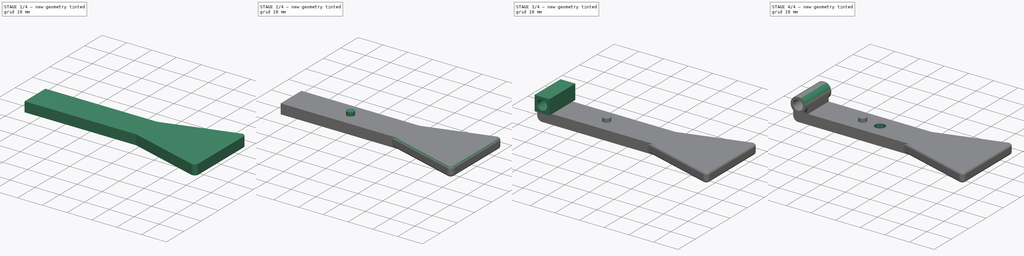
[diagram: build sequence overview — one tinted view per stage of 4, left to right]
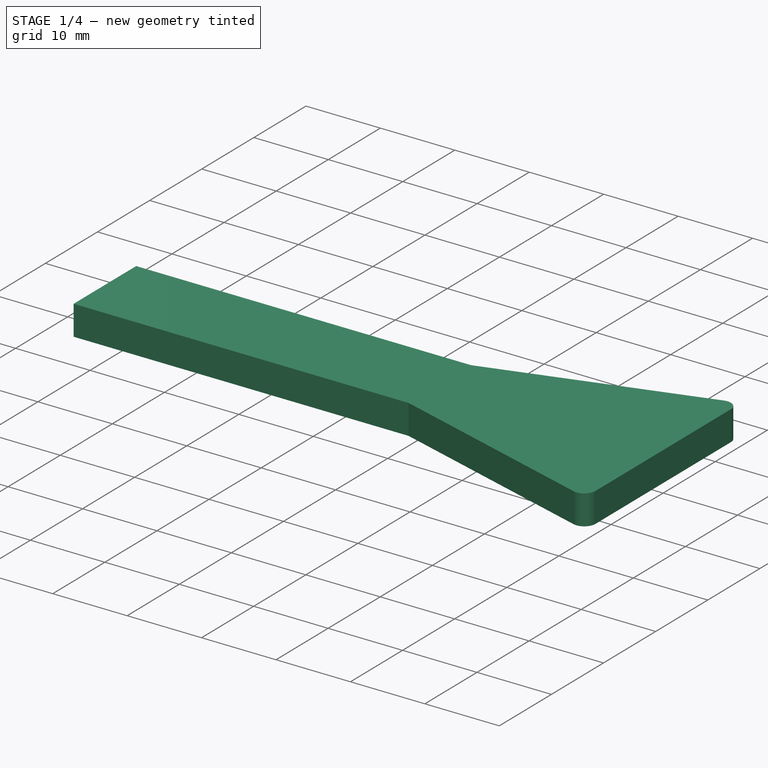
[diagram: stage 1 of 4 — iso view after this stage's code; geometry added in this stage tinted green]
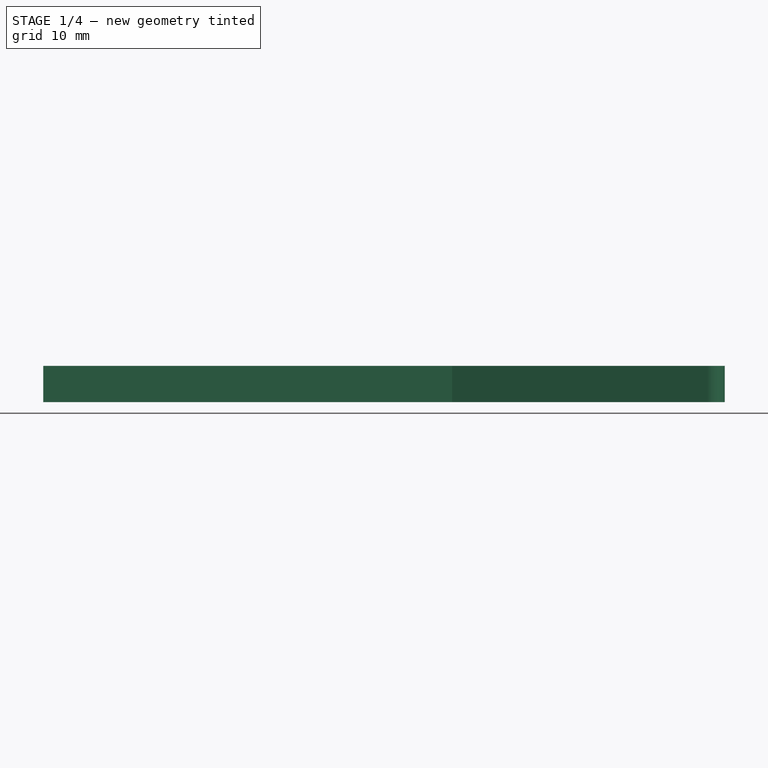
[diagram: stage 1 of 4 — front view after this stage's code; geometry added in this stage tinted green]
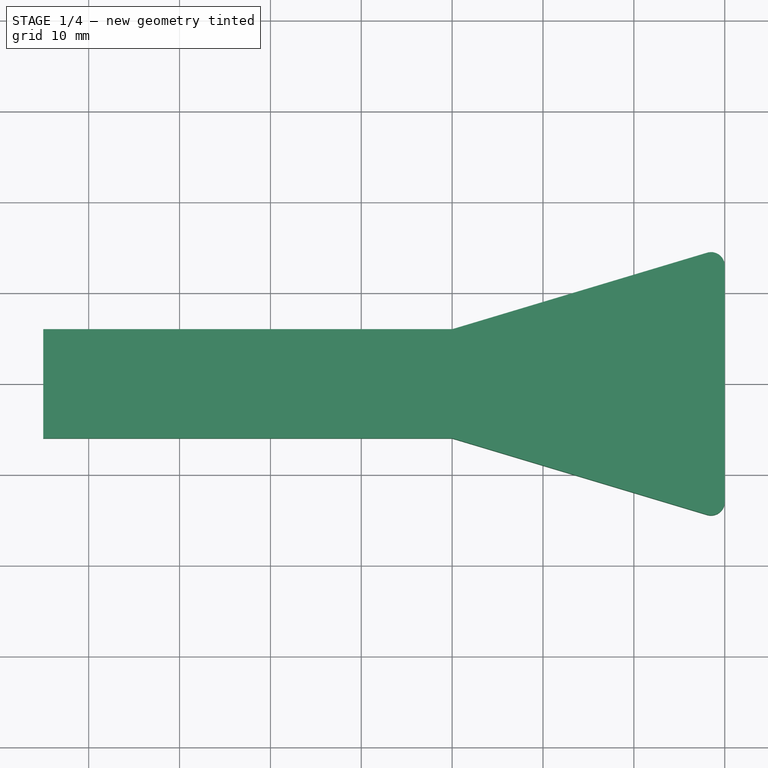
[diagram: stage 1 of 4 — top view after this stage's code; geometry added in this stage tinted green]
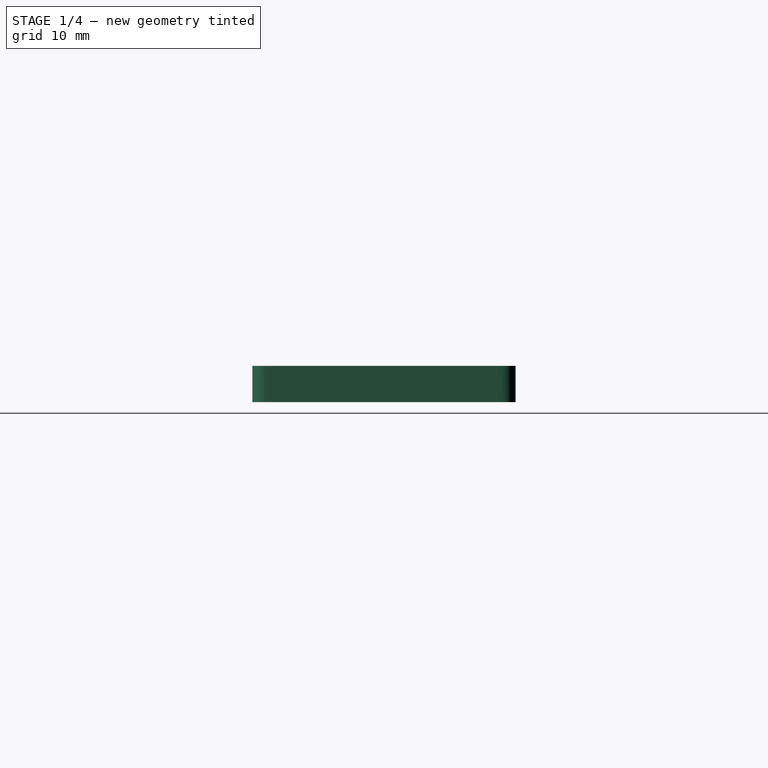
[diagram: stage 1 of 4 — right view after this stage's code; geometry added in this stage tinted green]
FCSTD DOCUMENT  (FreeCAD 0.21R33771 (Git))
Label: Key4
License: All rights reserved
LicenseURL: http://en.wikipedia.org/wiki/All_rights_reserved
objects: Sketcher::SketchObject×5, PartDesign::Fillet×4, PartDesign::Pad×3, PartDesign::Pocket×2, Spreadsheet::Sheet×1, PartDesign::Body×1, App::Part×1
note: 24 computed .brp shape members not serialized (recipe doc carries the construction recipe); baked Part::Feature solids carry a one-line shape summary decoded from their .brp

FEATURE [Spreadsheet::Sheet] Spreadsheet  label="p"
  cells = A1='button_stem_diameter; B1(button_stem_diameter)=6; A2='button_stem_length; B2(button_stem_length)=8.15; A3='button_body_width; B3(button_body_width)=12; A4='button_body_length; B4(button_body_length)=12; A5='button_body_depth; B5(button_body_depth)=4.2; A6='button_lug_spacing; B6(button_lug_spacing)=4; A7='button_lug_diameter; B7(button_lug_diameter)=1.1; A9='key_stem_length; B9(key_stem_length)=45; A10='key_paddle_length; B10(key_paddle_length)=30; A11='key_paddle_width; B11(key_paddle_width)=30; A12='key_paddle_thickness; B12(key_paddle_thickness)=4; A14='key_lug_length; B14(key_lug_length)=3; A16='spring_wire_diameter; B16(spring_wire_diameter)=1.2; A18='box_outer_width; B18(box_outer_width)=53; A19='box_outer_length; B19(box_outer_length)=75; A20='box_outer_depth; B20(box_outer_depth)=32; A22='box_inner_width; B22(box_inner_width)==B18 - B29 * 2; C22='Calculated; A23='box_inner_length; B23(box_inner_length)==B19 - B29 * 2; C23='Calculated; A24='box_inner_depth; B24(box_inner_depth)==B20 - B29; C24='Calculated; A26='box_outer_radius; B26(box_outer_radius)==B29 + 2; C26='Calculated; A27='box_inner_radius; B27(box_inner_radius)==B26 / 2; C27='Calculated; A29='box_wall_thickness; B29(box_wall_thickness)=2; A30='box_wall_clearance; B30(box_wall_clearance)==B29 * 0.2; C30='Calculated 20%; A32='lug_insert_diameter; B32(lug_insert_diameter)=3.9; A33='lug_depth; B33(lug_depth)==B24 - B29; A34='lug_outer_radius; B34(lug_outer_radius)==B32 * 2.5; A36='face_fillet; B36(face_fillet)=1; A38='lid_ridge_size; B38(lid_ridge_size)=1.5; A39='lid_screw_diameter; B39(lid_screw_diameter)=3; A40='lid_screw_chamfer; B40(lid_screw_chamfer)=1.98; A42='button_lip_clearance; B42(button_lip_clearance)=2.75; A43='stand_length; B43(stand_length)=15.15
FEATURE [Sketcher::SketchObject] Sketch
  FullyConstrained = true
  MapMode = 5
  Support = -> [XY_Plane001]
  expr: Constraints[12] = <<p>>.button_body_length
  expr: Constraints[13] = <<p>>.button_body_length / 2
  expr: Constraints[14] = <<p>>.key_stem_length
  expr: Constraints[15] = <<p>>.key_paddle_length
  expr: Constraints[16] = <<p>>.key_paddle_length / 2
  expr: Constraints[17] = <<p>>.key_paddle_width
  sketch-geometry (6):
    g0: LineSegment StartX=0 StartY=6 StartZ=0 EndX=-45 EndY=6 EndZ=0
    g1: LineSegment StartX=-45 StartY=6 StartZ=0 EndX=-45 EndY=-6 EndZ=0
    g2: LineSegment StartX=-45 StartY=-6 StartZ=0 EndX=0 EndY=-6 EndZ=0
    g3: LineSegment StartX=0 StartY=-6 StartZ=0 EndX=30 EndY=-15 EndZ=0
    g4: LineSegment StartX=30 StartY=-15 StartZ=0 EndX=30 EndY=15 EndZ=0
    g5: LineSegment StartX=30 StartY=15 StartZ=0 EndX=0 EndY=6 EndZ=0
  constraints (18):
    c: PointOnObject(g0,g-2)
    c: Horizontal(g0)
    c: Coincident(g0,g1)
    c: Vertical(g1)
    c: Coincident(g1,g2)
    c: PointOnObject(g2,g-2)
    c: Horizontal(g2)
    c: Coincident(g2,g3)
    c: Coincident(g3,g4)
    c: Vertical(g4)
    c: Coincident(g4,g5)
    c: Coincident(g5,g0)
    c: DistanceY(g1,g1) = 12
    c: DistanceY(g-1,g0) = 6
    c: DistanceX(g0,g0) = 45
    c: DistanceY(g4,g4) = 30
    c: DistanceY(g-1,g4) = 15
    c: DistanceX(g-1,g4) = 30
FEATURE [PartDesign::Pad] Pad  label="KeyPad"
  Direction = (0,0,1)
  Length = 4
  Length2 = 10
  Profile = -> Sketch
  ReferenceAxis = -> Sketch [N_Axis]
  Type = 0
  expr: Length = <<p>>.key_paddle_thickness
FEATURE [PartDesign::Fillet] Fillet  label="KeyEdgeFillet"
  Base = -> Pad [Edge14,Edge11]
  BaseFeature = -> Pad
  Radius = 1.5
  SupportTransform = false
  UseAllEdges = false
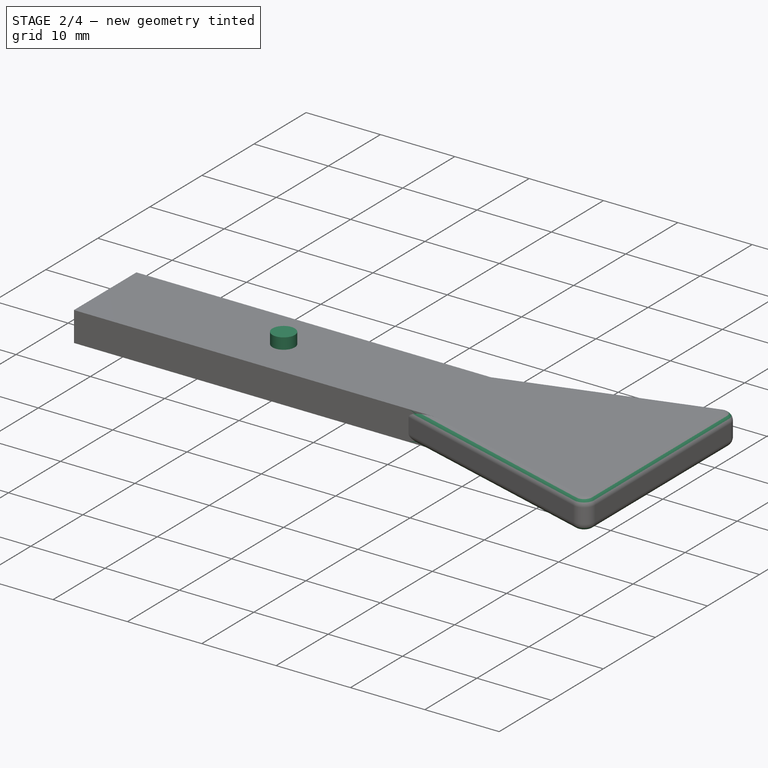
[diagram: stage 2 of 4 — iso view after this stage's code; geometry added in this stage tinted green]
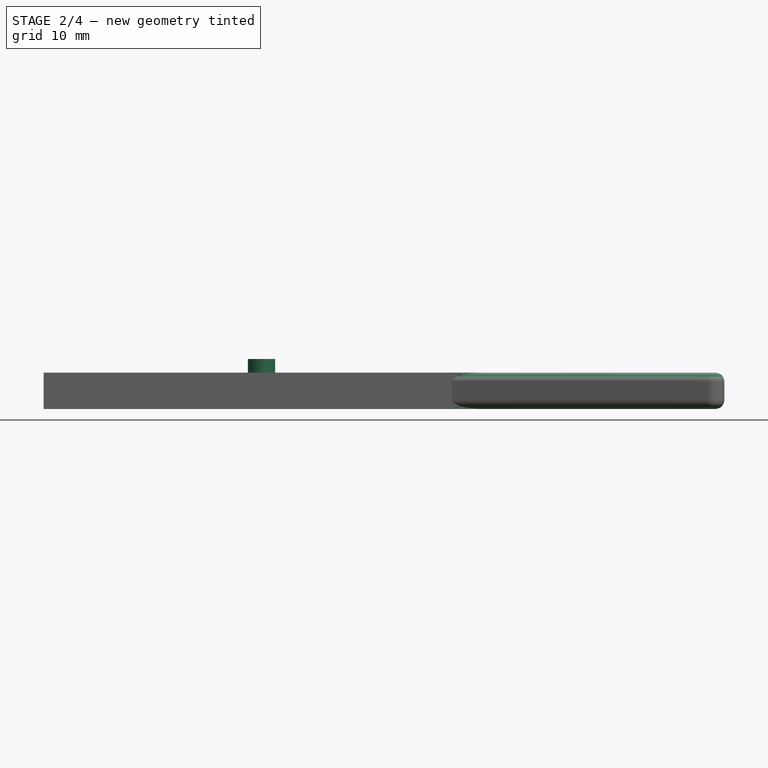
[diagram: stage 2 of 4 — front view after this stage's code; geometry added in this stage tinted green]
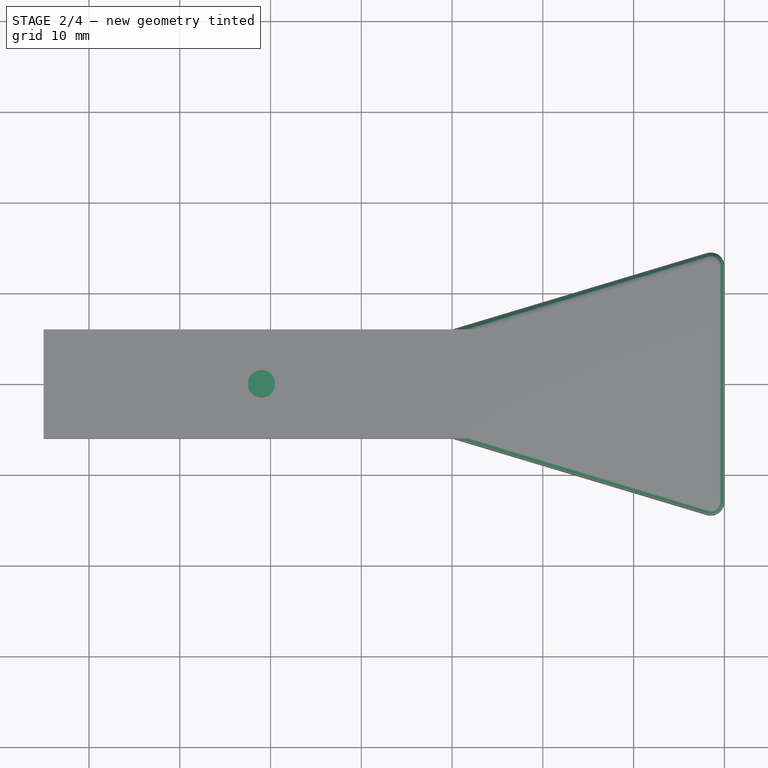
[diagram: stage 2 of 4 — top view after this stage's code; geometry added in this stage tinted green]
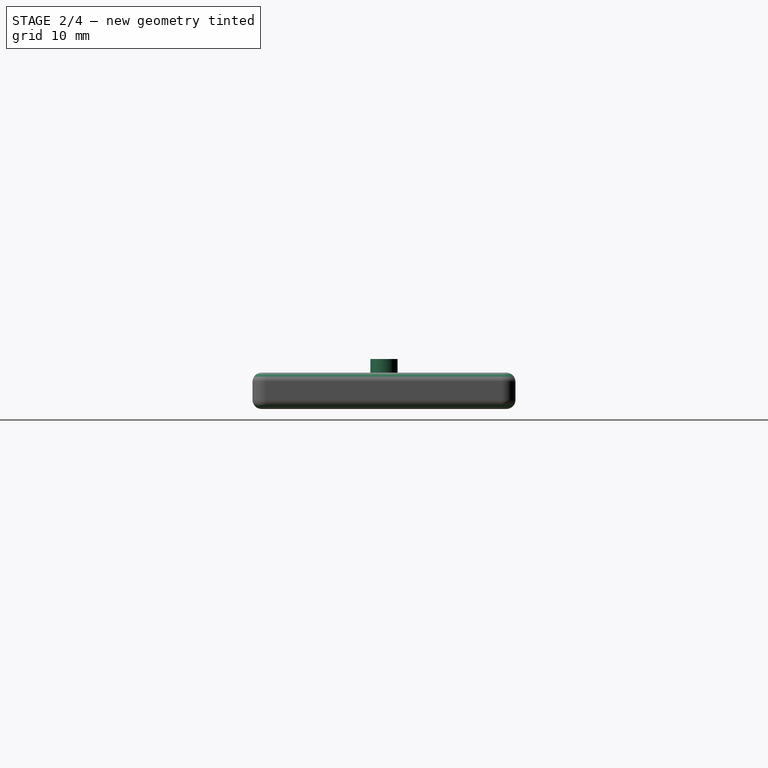
[diagram: stage 2 of 4 — right view after this stage's code; geometry added in this stage tinted green]
FEATURE [PartDesign::Fillet] Fillet001  label="KeySoftEdgeFillet"
  Base = -> Fillet [Edge20,Edge11,Edge9,Edge18,Edge16,Edge7,Edge4,Edge1,Edge5,Edge13]
  BaseFeature = -> Fillet
  Radius = 1
  SupportTransform = false
  UseAllEdges = false
FEATURE [Sketcher::SketchObject] Sketch003
  FullyConstrained = true
  MapMode = 5
  Placement = pos=(0,0,3.5) rot=(0,0,1;0rad)
  sketch-geometry (1):
    g0: Circle CenterX=-21 CenterY=0 CenterZ=0 NormalX=0 NormalY=0 NormalZ=1 AngleXU=0 Radius=1.5
  constraints (3):
    c: PointOnObject(g0,g-1)
    c: DistanceX(g0,g-1) = 21
    c: Diameter(g0) = 3
FEATURE [PartDesign::Pad] Pad003  label="KeyButtonMounts"
  BaseFeature = -> Fillet001
  Direction = (0,0,1)
  Length = 2
  Length2 = 10
  Profile = -> Sketch003
  ReferenceAxis = -> Sketch003 [N_Axis]
  Type = 0
  expr: Length = 2
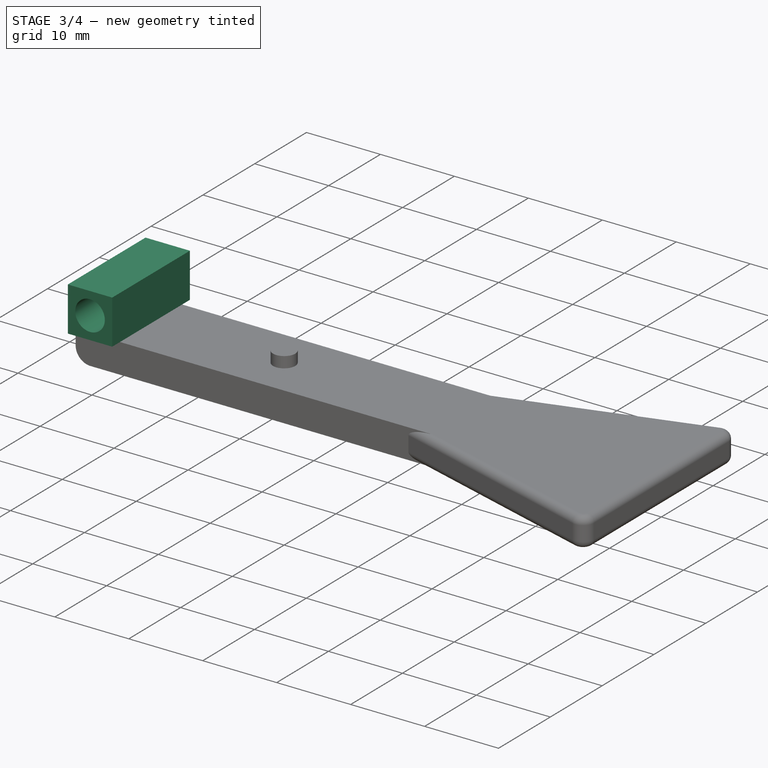
[diagram: stage 3 of 4 — iso view after this stage's code; geometry added in this stage tinted green]
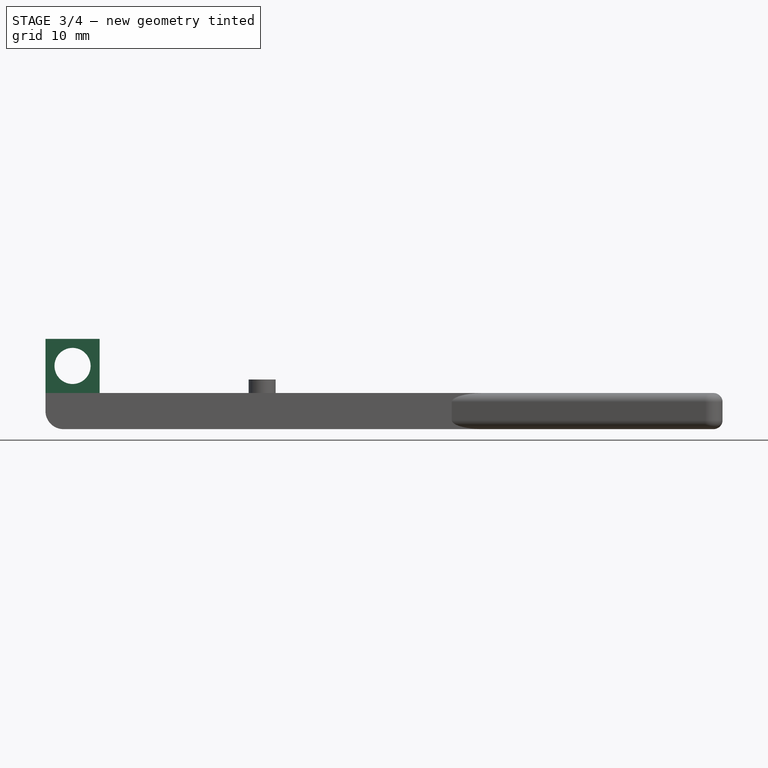
[diagram: stage 3 of 4 — front view after this stage's code; geometry added in this stage tinted green]
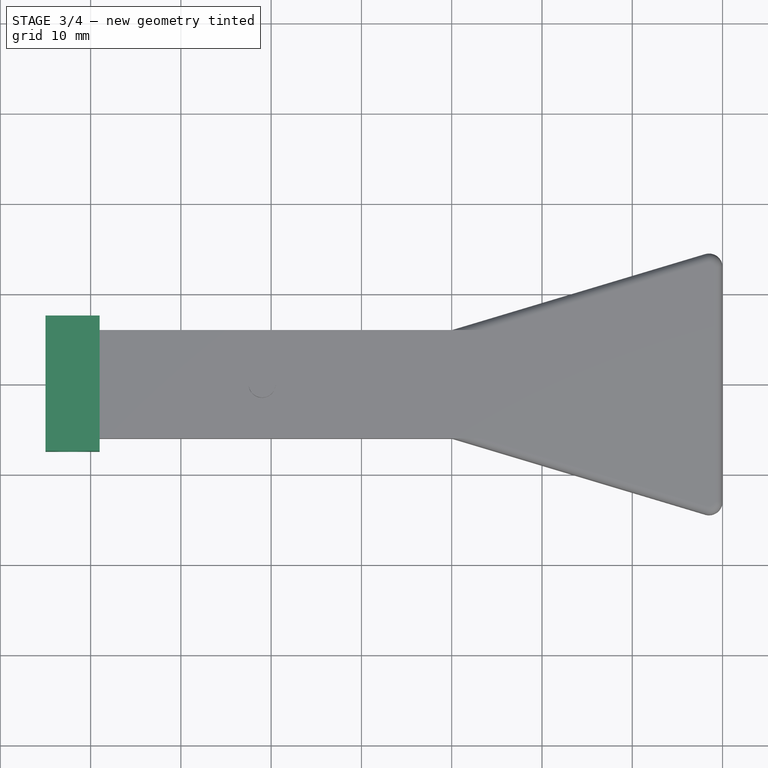
[diagram: stage 3 of 4 — top view after this stage's code; geometry added in this stage tinted green]
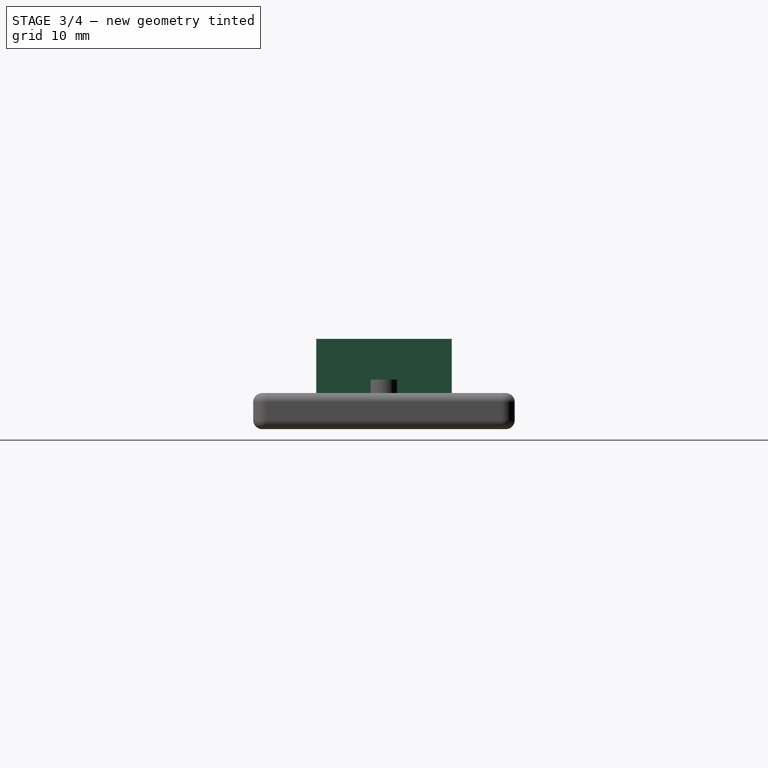
[diagram: stage 3 of 4 — right view after this stage's code; geometry added in this stage tinted green]
FEATURE [PartDesign::Fillet] Fillet002
  Base = -> Pad003 [Edge26]
  BaseFeature = -> Pad003
  Radius = 2
  SupportTransform = false
  UseAllEdges = false
FEATURE [Sketcher::SketchObject] Sketch004
  FullyConstrained = true
  MapMode = 5
  Placement = pos=(0,0,4) rot=(0,0,1;0rad)
  Support = -> [Fillet002]
  expr: Constraints[10] = <<p>>.stand_length - 0.15
  expr: Constraints[11] = (<<p>>.stand_length - 0.15) / 2
  expr: Constraints[8] = <<p>>.key_stem_length
  sketch-geometry (4):
    g0: LineSegment StartX=-45 StartY=7.5 StartZ=0 EndX=-39 EndY=7.5 EndZ=0
    g1: LineSegment StartX=-39 StartY=7.5 StartZ=0 EndX=-39 EndY=-7.5 EndZ=0
    g2: LineSegment StartX=-39 StartY=-7.5 StartZ=0 EndX=-45 EndY=-7.5 EndZ=0
    g3: LineSegment StartX=-45 StartY=-7.5 StartZ=0 EndX=-45 EndY=7.5 EndZ=0
  constraints (12):
    c: Coincident(g0,g1)
    c: Coincident(g1,g2)
    c: Coincident(g2,g3)
    c: Coincident(g3,g0)
    c: Horizontal(g0)
    c: Horizontal(g2)
    c: Vertical(g1)
    c: Vertical(g3)
    c: DistanceX(g0,g-1) = 45
    c: DistanceX(g0,g0) = 6
    c: DistanceY(g1,g1) = 15
    c: DistanceY(g-1,g0) = 7.5
FEATURE [PartDesign::Pad] Pad004
  BaseFeature = -> Fillet002
  Direction = (0,0,1)
  Length = 6
  Length2 = 10
  Profile = -> Sketch004
  ReferenceAxis = -> Sketch004 [N_Axis]
  Type = 0
FEATURE [Sketcher::SketchObject] Sketch005
  FullyConstrained = true
  MapMode = 5
  Placement = pos=(0,-7.5,0) rot=(1,0,0;1.5708rad)
  Support = -> [Pad004]
  expr: Constraints[1] = <<p>>.key_stem_length - 3
  expr: Constraints[2] = <<p>>.key_paddle_thickness + 3
  sketch-geometry (1):
    g0: Circle CenterX=-42 CenterY=7 CenterZ=0 NormalX=0 NormalY=0 NormalZ=1 AngleXU=0 Radius=2
  constraints (3):
    c: Diameter(g0) = 4
    c: DistanceX(g0,g-1) = 42
    c: DistanceY(g-1,g0) = 7
FEATURE [PartDesign::Pocket] Pocket
  BaseFeature = -> Pad004
  Direction = (0,1,-2e-16)
  Length = 5
  Length2 = 5
  Profile = -> Sketch005
  ReferenceAxis = -> Sketch005 [N_Axis]
  Type = 1
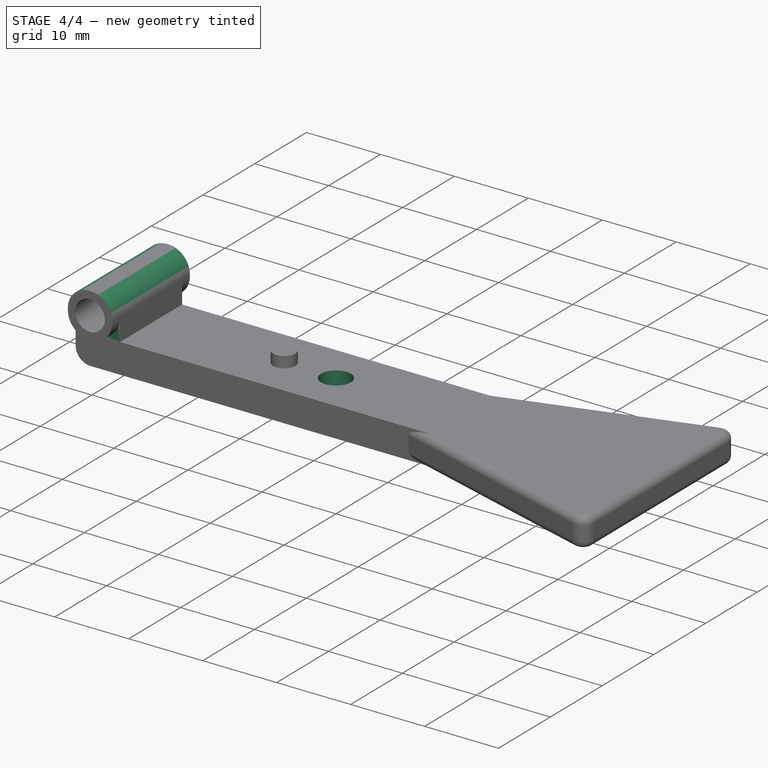
[diagram: stage 4 of 4 — iso view after this stage's code; geometry added in this stage tinted green]
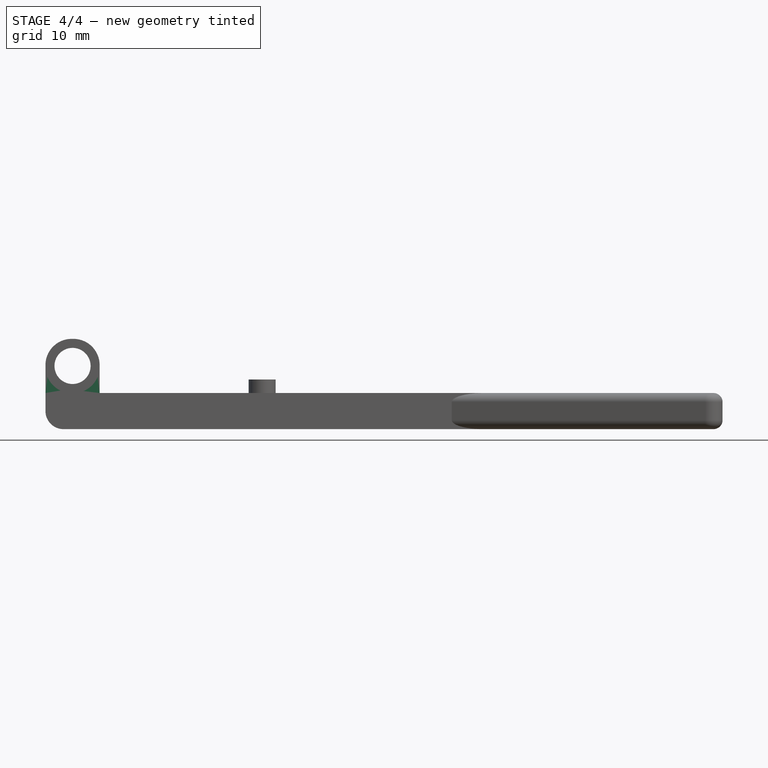
[diagram: stage 4 of 4 — front view after this stage's code; geometry added in this stage tinted green]
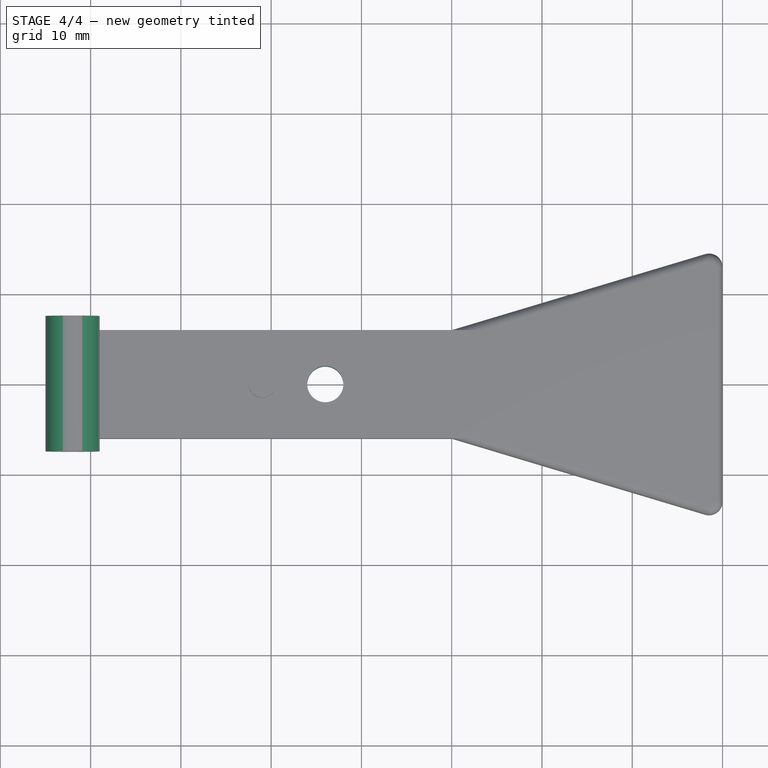
[diagram: stage 4 of 4 — top view after this stage's code; geometry added in this stage tinted green]
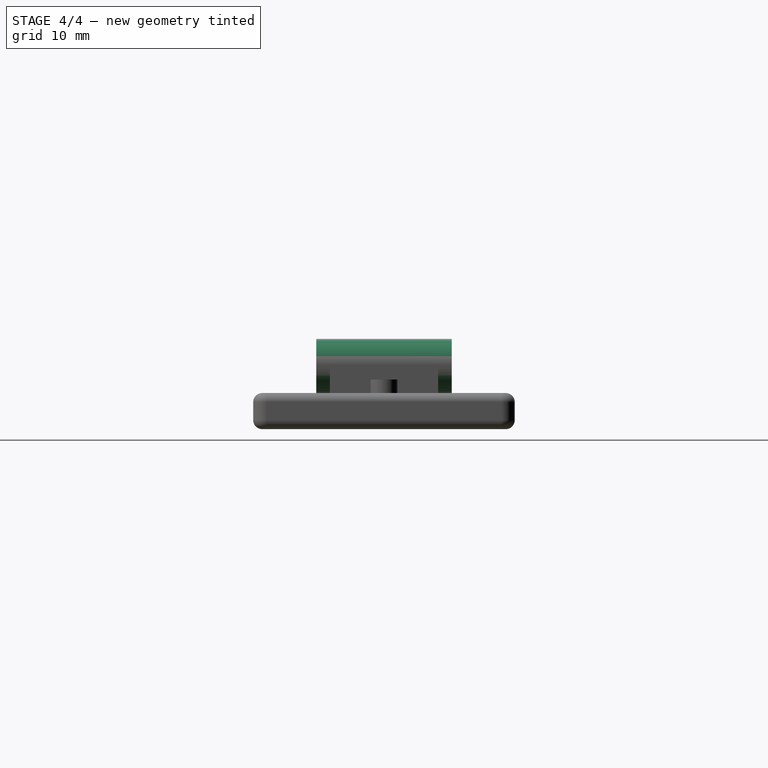
[diagram: stage 4 of 4 — right view after this stage's code; geometry added in this stage tinted green]
FEATURE [PartDesign::Fillet] Fillet003
  Base = -> Pocket [Edge54,Edge58,Edge27,Edge25,Edge53,Edge57]
  BaseFeature = -> Pocket
  Radius = 2.9
  SupportTransform = false
  UseAllEdges = false
FEATURE [Sketcher::SketchObject] Sketch006
  FullyConstrained = true
  MapMode = 5
  Placement = pos=(0,0,4) rot=(0,0,1;0rad)
  Support = -> [Fillet003]
  sketch-geometry (1):
    g0: Circle CenterX=-14 CenterY=0 CenterZ=0 NormalX=0 NormalY=0 NormalZ=1 AngleXU=0 Radius=2
  constraints (3):
    c: PointOnObject(g0,g-1)
    c: Diameter(g0) = 4
    c: DistanceX(g0,g-1) = 14
FEATURE [PartDesign::Pocket] Pocket001
  BaseFeature = -> Fillet003
  Direction = (0,0,-1)
  Length = 5
  Length2 = 5
  Profile = -> Sketch006
  ReferenceAxis = -> Sketch006 [N_Axis]
  Type = 1
FEATURE [PartDesign::Body] Body  label="KeyBody"
  Group = -> [Sketch,Pad,Fillet,Fillet001,Sketch003,Pad003,Fillet002,Sketch004,Pad004,Sketch005,Pocket,Fillet003,Sketch006,Pocket001]
  Origin = -> Origin001
  Tip = -> Pocket001
FEATURE [App::Part] Part  label="KeyPart"
  Group = -> [Body]
  Origin = -> Origin
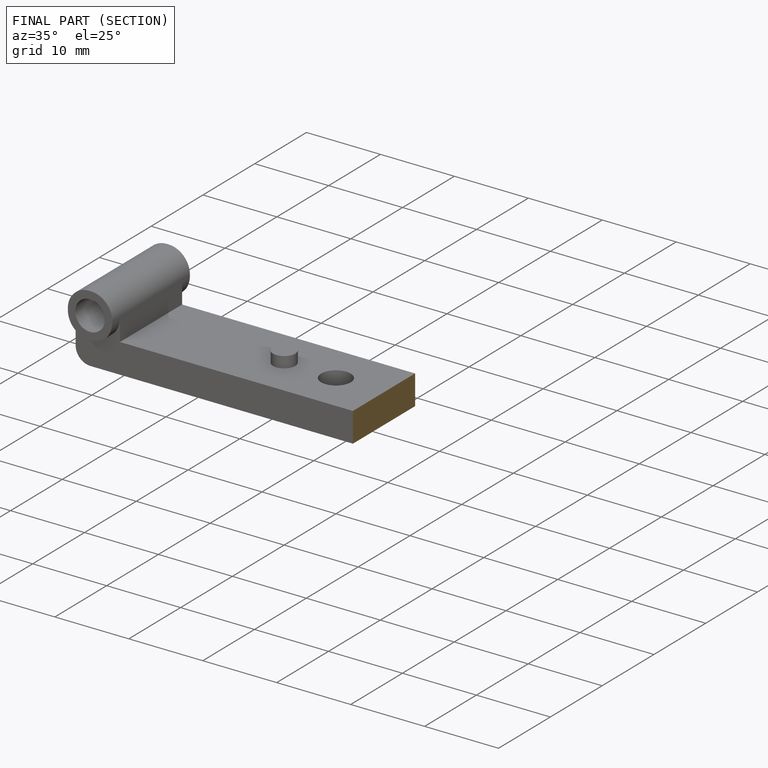
[diagram: finished part — half-section view (interior)]
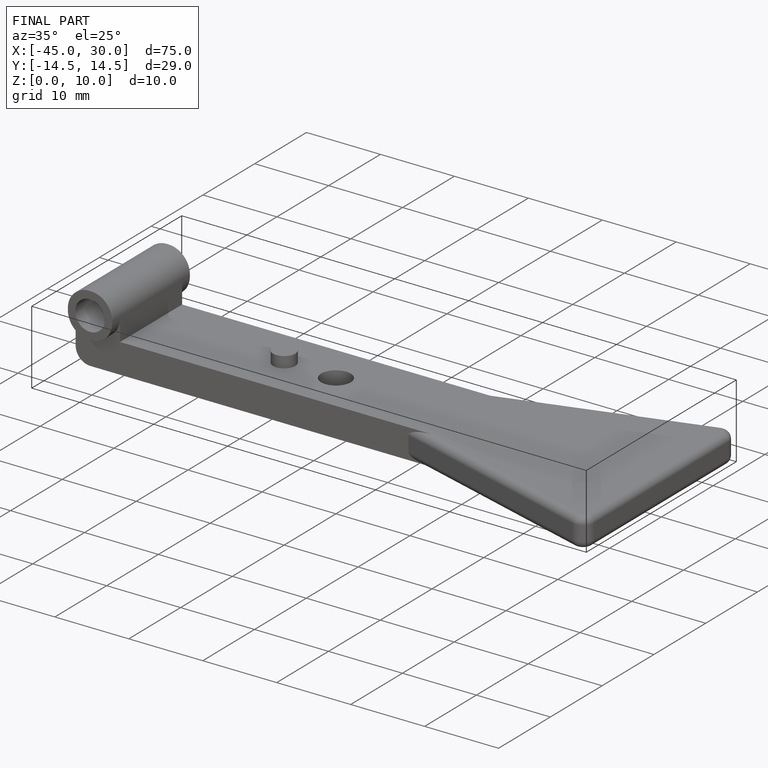
[diagram: finished part — iso view with bounding-box wireframe]
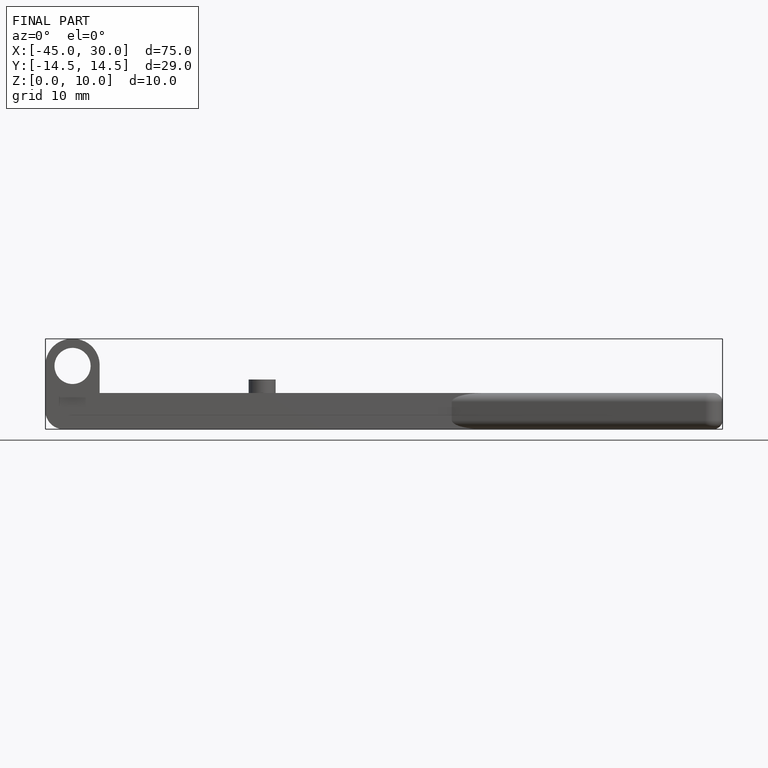
[diagram: finished part — front view with bounding-box wireframe]
